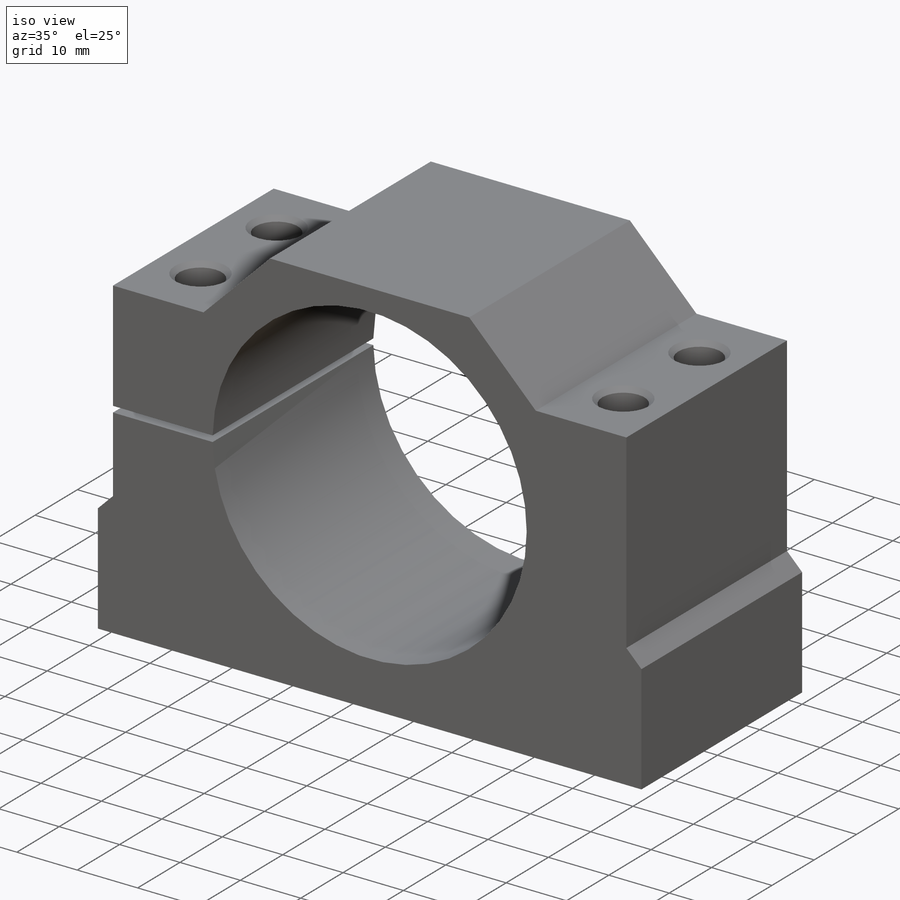
[diagram: iso view]
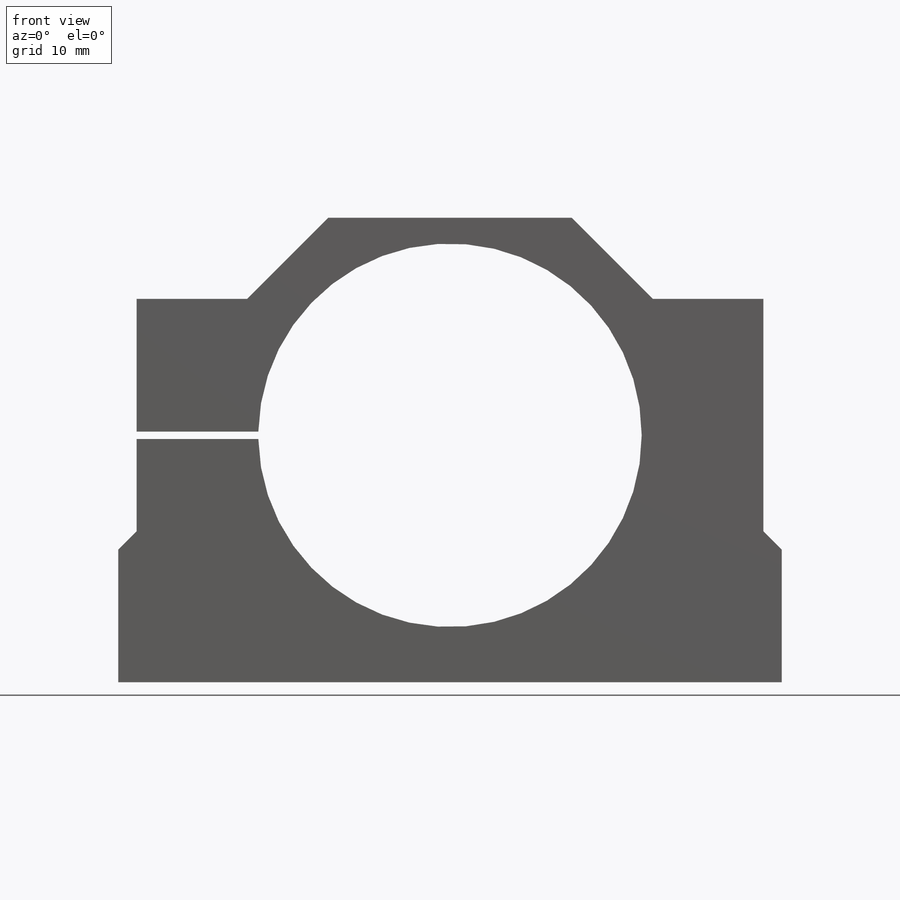
[diagram: front view]
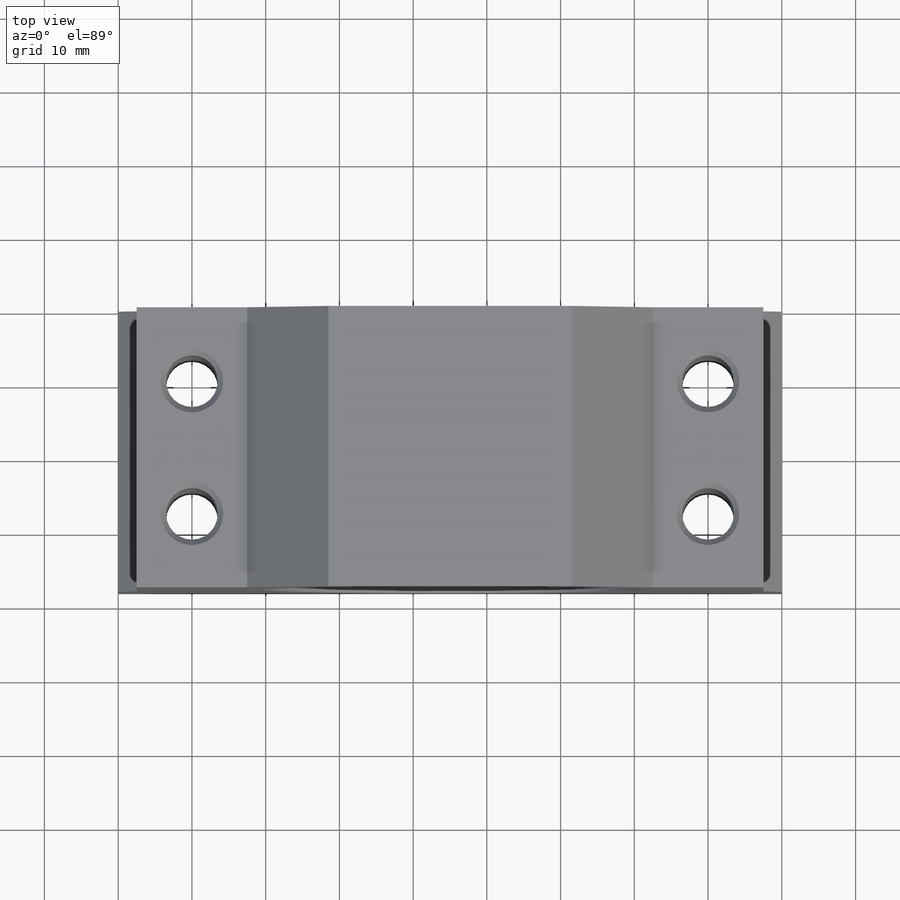
[diagram: top view]
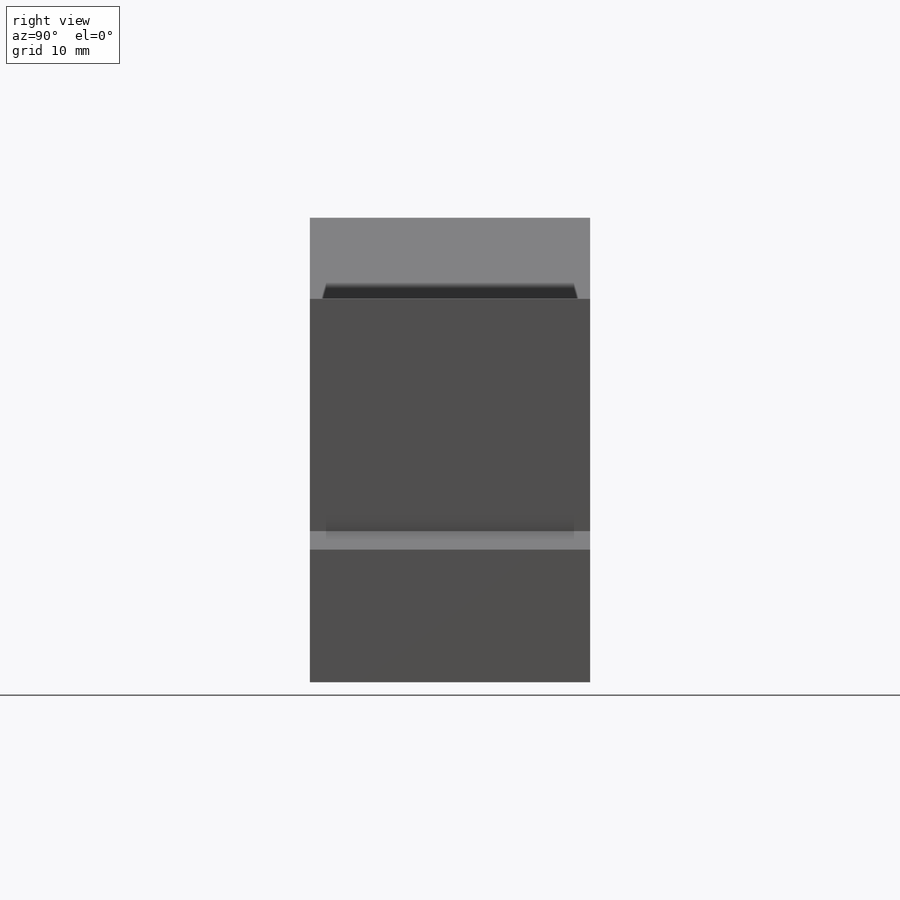
[diagram: right view]
SOLIDWORKS PART (.sldprt)
format: sldprt  version: not decoded by parser v0  size: 240,128 bytes
history: native  units: mm
features: sketch x5, plane x3, cut_extrude x2, material x1, extrude x1, hole x1 (+10 scaffold rows collapsed)
feature tree (23):
  scaffold x10  (default folders/planes/origin — collapsed)
  material  "Material <nicht angegeben>"
  plane  "Ebene vorne"
  plane  "Ebene oben"
  plane  "Ebene rechts"
  sketch  "Skizze1"  dims[c1.D1=90.0mm c1.D2=52.0mm c1.D3=15.0mm c1.D4=15.0mm c1.D5=63.01mm c1.D6=~18.477971mm c1.D7=~36.572869deg c2.D6=45.0deg c3.D6=18.0mm c3.D7=18.0mm c3.D8=52.0mm c3.D9=45.0deg c4.D9=~0.991751mm c4.D10=~1.238053mm c5.D9=~1.114902mm c5.D10=2.5mm c5.D11=45.0deg c6.D9=2.5mm c6.D11=45.0deg c7.D11=2.5mm c8.D11=135.0deg c8.D12=18.0mm c9.D12=135.0deg c9.D13=11.01mm c10.D13=135.0deg]
  extrude  "Aufsatz-Linear austragen1"  Depth=38mm
  sketch  "Skizze2"  dims[D1=~13.460849mm]
  cut_extrude  "Schnitt-Linear austragen1"  Depth=38mm
  sketch  "Skizze3"  dims[D1=1.0mm D2=33.0mm D3=17.0mm]
  cut_extrude  "Schnitt-Linear austragen2"  Depth=38mm
  hole  "Ø7.0 (7) Durchmesser Bohrung4"  Diameter=7mm Depth=52mm
  sketch  "Skizze11"
  sketch  "Skizze10"  dims[hole-wizard template sketch: 54 standard entries collapsed; hole parameters kept: c17.Bohrerdurchmesser=7.0mm c17.Bohrungstiefe=52.0mm c17.Senkdurchmesser2 (Oben)=8.5mm c17.D4=~3.666174mm c17.Senkwinkel2 (Oben)=90.0deg]
decode coverage: 8 of 9 modeling features carry decoded parameters
note: ~ marks probable driven/reference dimensions
note: suppression state not decoded; provenance and decode notes live in map.json
